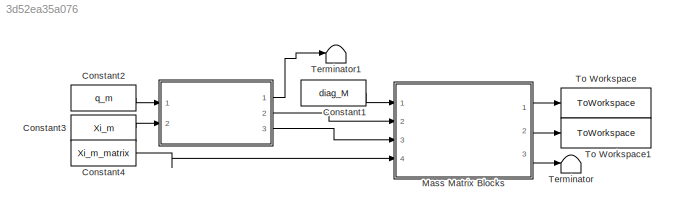
MODEL slx_3d52ea35a076
KIND model
CONFIG AbsTol = auto
CONFIG EnableMultiTasking = off
CONFIG FixedStep = auto
CONFIG MaxStep = auto
CONFIG MinStep = auto
CONFIG RelTol = 1e-3
CONFIG SampleTimeConstraint = Unconstrained
CONFIG SolverName = VariableStepAuto
CONFIG StartTime = 0.0
CONFIG StopTime = 0.01
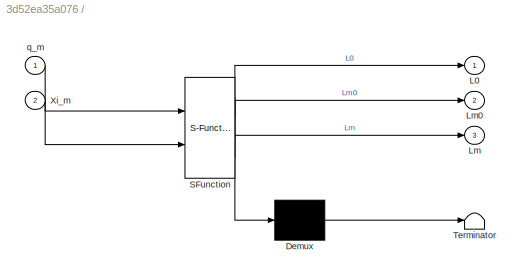
BLOCK [SubSystem]  
  ErrorFcn = Stateflow.Translate.translate
  PermitHierarchicalResolution = ExplicitOnly
  Ports = [2, 3]
  RequestExecContextInheritance = off
  SFBlockType = MATLAB Function
  TreatAsAtomicUnit = on
BLOCK [Demux]  / Demux 
  Outputs = 1
  Ports = [1, 1]
BLOCK [S-Function]  / SFunction 
  EnableBusSupport = on
  FunctionName = sf_sfun
  PortCounts = [2 4]
  Ports = [2, 4]
  SFcnIsStateOwnerBlock = off
  SFunctionDeploymentMode = off
  Tag = Stateflow S-Function 4
BLOCK [Terminator]  / Terminator 
BLOCK [Outport]  /L0
BLOCK [Outport]  /Lm
  Port = 3
BLOCK [Outport]  /Lm0
  Port = 2
BLOCK [Inport]  /Xi_m
  Port = 2
BLOCK [Inport]  /q_m
BLOCK [Constant] Constant1
  Value = diag_M
BLOCK [Constant] Constant2
  Value = q_m
  VectorParams1D = off
BLOCK [Constant] Constant3
  Value = Xi_m
BLOCK [Constant] Constant4
  Value = Xi_m_matrix
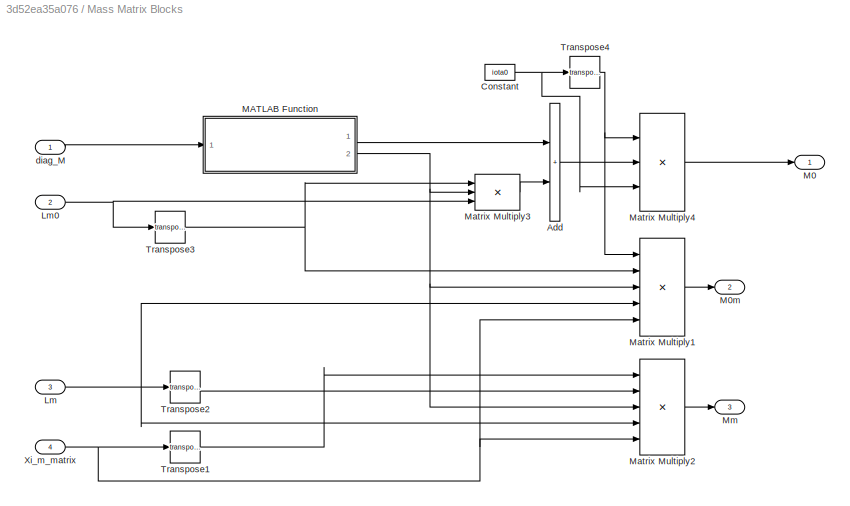
BLOCK [SubSystem] Mass Matrix Blocks
  Ports = [4, 3]
  RequestExecContextInheritance = off
BLOCK [Sum] Mass Matrix Blocks/Add
  IconShape = rectangular
  Ports = [2, 1]
BLOCK [Constant] Mass Matrix Blocks/Constant
  Value = iota0
BLOCK [Inport] Mass Matrix Blocks/Lm
  Port = 3
BLOCK [Inport] Mass Matrix Blocks/Lm0
  Port = 2
BLOCK [Outport] Mass Matrix Blocks/M0
BLOCK [Outport] Mass Matrix Blocks/M0m
  Port = 2
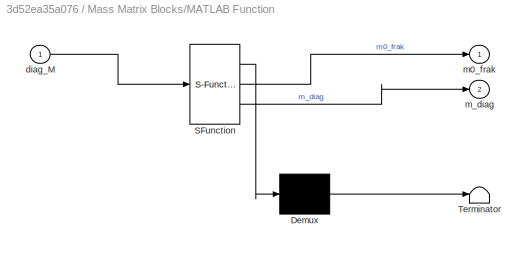
BLOCK [SubSystem] Mass Matrix Blocks/MATLAB Function
  ErrorFcn = Stateflow.Translate.translate
  PermitHierarchicalResolution = ExplicitOnly
  Ports = [1, 2]
  RequestExecContextInheritance = off
  SFBlockType = MATLAB Function
  TreatAsAtomicUnit = on
BLOCK [Demux] Mass Matrix Blocks/MATLAB Function/ Demux 
  Outputs = 1
  Ports = [1, 1]
BLOCK [S-Function] Mass Matrix Blocks/MATLAB Function/ SFunction 
  EnableBusSupport = on
  FunctionName = sf_sfun
  PortCounts = [1 3]
  Ports = [1, 3]
  SFcnIsStateOwnerBlock = off
  SFunctionDeploymentMode = off
  Tag = Stateflow S-Function 63
BLOCK [Terminator] Mass Matrix Blocks/MATLAB Function/ Terminator 
BLOCK [Inport] Mass Matrix Blocks/MATLAB Function/diag_M
BLOCK [Outport] Mass Matrix Blocks/MATLAB Function/m0_frak
BLOCK [Outport] Mass Matrix Blocks/MATLAB Function/m_diag
  Port = 2
BLOCK [Product] Mass Matrix Blocks/Matrix Multiply1
  Inputs = 5
  Multiplication = Matrix(*)
  Ports = [5, 1]
BLOCK [Product] Mass Matrix Blocks/Matrix Multiply2
  Inputs = 5
  Multiplication = Matrix(*)
  Ports = [5, 1]
BLOCK [Product] Mass Matrix Blocks/Matrix Multiply3
  Inputs = 3
  Multiplication = Matrix(*)
  Ports = [3, 1]
BLOCK [Product] Mass Matrix Blocks/Matrix Multiply4
  Inputs = 3
  Multiplication = Matrix(*)
  Ports = [3, 1]
BLOCK [Outport] Mass Matrix Blocks/Mm
  Port = 3
BLOCK [Math] Mass Matrix Blocks/Transpose1
  Operator = transpose
  Ports = [1, 1]
BLOCK [Math] Mass Matrix Blocks/Transpose2
  Operator = transpose
  Ports = [1, 1]
BLOCK [Math] Mass Matrix Blocks/Transpose3
  Operator = transpose
  Ports = [1, 1]
BLOCK [Math] Mass Matrix Blocks/Transpose4
  Operator = transpose
  Ports = [1, 1]
BLOCK [Inport] Mass Matrix Blocks/Xi_m_matrix
  Port = 4
BLOCK [Inport] Mass Matrix Blocks/diag_M
BLOCK [Terminator] Terminator
BLOCK [Terminator] Terminator1
BLOCK [ToWorkspace] To Workspace
  FixptAsFi = on
  MaxDataPoints = inf
  Ports = [1]
  SampleTime = -1
  SaveFormat = Timeseries
  VariableName = M0
BLOCK [ToWorkspace] To Workspace1
  FixptAsFi = on
  MaxDataPoints = inf
  Ports = [1]
  SampleTime = -1
  SaveFormat = Timeseries
  VariableName = M0m
LINE  :1 -> Terminator1:1
LINE  :2 -> Mass Matrix Blocks:2
LINE  :3 -> Mass Matrix Blocks:3
LINE Constant1:1 -> Mass Matrix Blocks:1
LINE Constant2:1 ->  :1
LINE Constant3:1 ->  :2
LINE Constant4:1 -> Mass Matrix Blocks:4
LINE Mass Matrix Blocks/Add:1 -> Mass Matrix Blocks/Matrix Multiply4:2
NET Mass Matrix Blocks/Constant:1 -> Mass Matrix Blocks/Matrix Multiply4:3, Mass Matrix Blocks/Transpose4:1
NET Mass Matrix Blocks/Lm0:1 -> Mass Matrix Blocks/Matrix Multiply3:3, Mass Matrix Blocks/Transpose3:1
NET Mass Matrix Blocks/Lm:1 -> Mass Matrix Blocks/Matrix Multiply1:4, Mass Matrix Blocks/Matrix Multiply2:4, Mass Matrix Blocks/Transpose2:1
LINE Mass Matrix Blocks/MATLAB Function:1 -> Mass Matrix Blocks/Add:1
NET Mass Matrix Blocks/MATLAB Function:2 -> Mass Matrix Blocks/Matrix Multiply1:3, Mass Matrix Blocks/Matrix Multiply2:3, Mass Matrix Blocks/Matrix Multiply3:2
LINE Mass Matrix Blocks/Matrix Multiply1:1 -> Mass Matrix Blocks/M0m:1
LINE Mass Matrix Blocks/Matrix Multiply2:1 -> Mass Matrix Blocks/Mm:1
LINE Mass Matrix Blocks/Matrix Multiply3:1 -> Mass Matrix Blocks/Add:2
LINE Mass Matrix Blocks/Matrix Multiply4:1 -> Mass Matrix Blocks/M0:1
LINE Mass Matrix Blocks/Transpose1:1 -> Mass Matrix Blocks/Matrix Multiply2:1
LINE Mass Matrix Blocks/Transpose2:1 -> Mass Matrix Blocks/Matrix Multiply2:2
NET Mass Matrix Blocks/Transpose3:1 -> Mass Matrix Blocks/Matrix Multiply1:2, Mass Matrix Blocks/Matrix Multiply3:1
NET Mass Matrix Blocks/Transpose4:1 -> Mass Matrix Blocks/Matrix Multiply1:1, Mass Matrix Blocks/Matrix Multiply4:1
NET Mass Matrix Blocks/Xi_m_matrix:1 -> Mass Matrix Blocks/Matrix Multiply1:5, Mass Matrix Blocks/Matrix Multiply2:5, Mass Matrix Blocks/Transpose1:1
LINE Mass Matrix Blocks/diag_M:1 -> Mass Matrix Blocks/MATLAB Function:1
LINE Mass Matrix Blocks:1 -> To Workspace:1
LINE Mass Matrix Blocks:2 -> To Workspace1:1
LINE Mass Matrix Blocks:3 -> Terminator:1
note: NET lines group one-source signal fan-out (src -> all destinations, sorted); 1:1 wires keep LINE
CHART   states=1 transitions=1
  STATE_LABEL 'eML_blk_kernel()'
  STATE_LABEL 'SCRIPT:\nfunction [L0,Lm0,Lm] =L_calculator(q_m,Xi_m)\n% Calculates the time-dependent L matrix\nn=length(q_m);\nL=zeros(6*(n+1),6*(n+1));\n% Compute M_frak for ith body\n% Calculate L matrix\nfor i=1:n+1\n    for j=1:n+1\n        if i>j\n            Ad_temp=eye(6);\n            for k=j:i-1\n                Ad_temp=Adjoint(g_Matrix(-Xi_m(:,k),q_m(k)))*Ad_temp;\n            end\n            L(6*(i-1)+1:6*(i-1)+6...<+279ch>'
CHART Mass Matrix Blocks/MATLAB Function states=1 transitions=1
  STATE_LABEL 'eML_blk_kernel()'
  STATE_LABEL 'SCRIPT:\nfunction [m0_frak,m_diag]=m_frak_decomp(diag_M)\n% Compute the Mass Matrix of the multibody system.\n%   Output:\n%   M0      Spacecraft mass matrix \n%   M0m\n%   Mm      Manipulator mass matrix\n\n%n=length(q_m);\n\nm0_frak=diag_M(1:6,1:6);\nm_diag=diag_M(7:end,7:end);'
CHART  states=0 transitions=0
CHART  states=0 transitions=0
